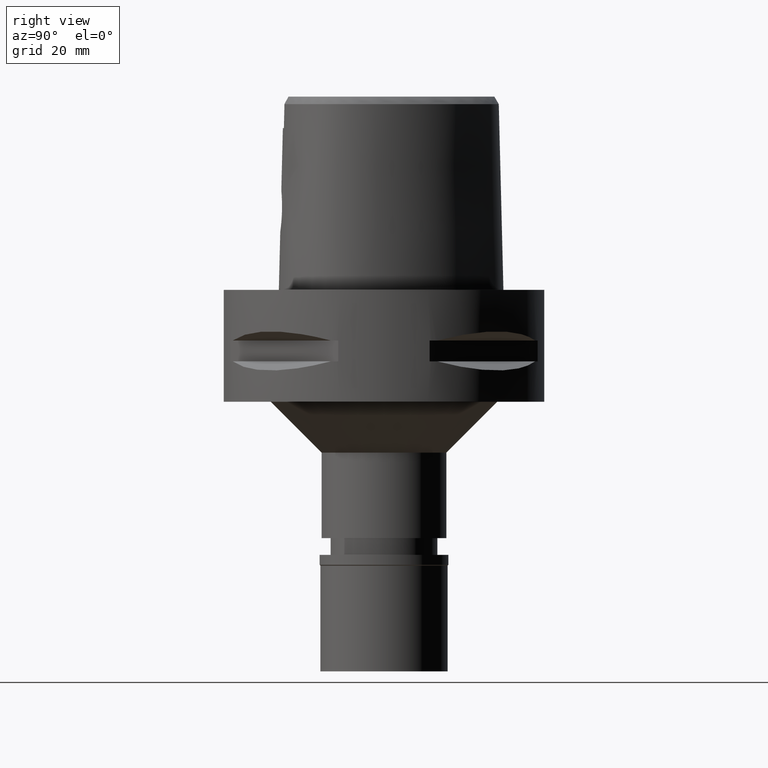
[diagram: clean part render]
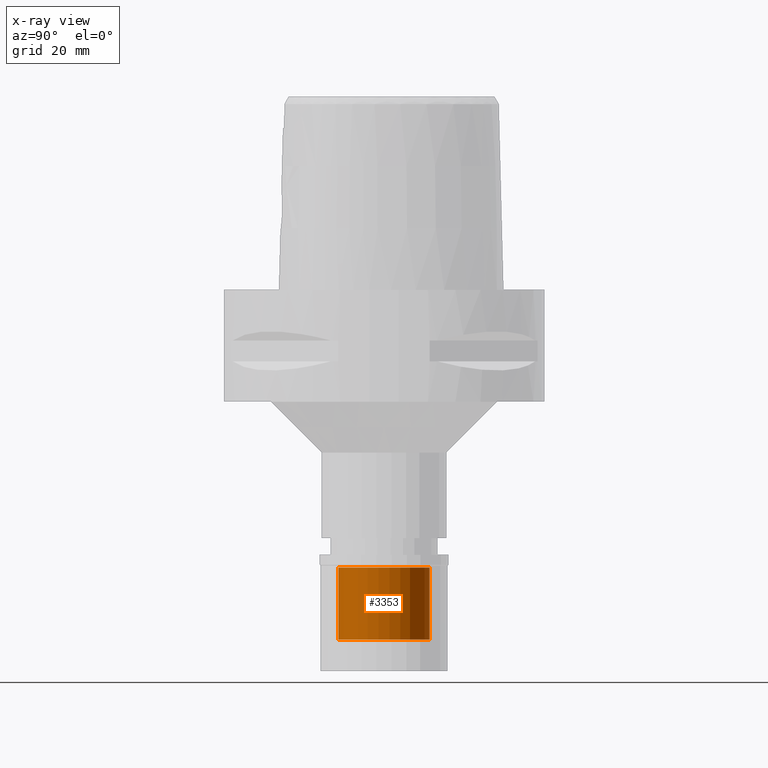
[diagram: x-ray — body ghosted, one internal face saturated and labeled with its STEP entity id]
A machine part, right view, then the same camera in x-ray: the body is ghosted and one INTERNAL B-rep face — a face not visible from any outside direction — is saturated and labeled: STEP entity #3353.
In plain terms, the highlighted cylindrical surface (partial cylindrical patch) has radius 9 mm, axis along (0, 0, -1).
Its self-contained STEP definition (entity closure, byte-faithful):
#12 = VECTOR ( 'NONE', #4309, 1000.000000000000000 ) ;
#117 = CARTESIAN_POINT ( 'NONE',  ( 0.0000000000000000000, 0.0000000000000000000, -2.500000000000000000 ) ) ;
#408 = LINE ( 'NONE', #4475, #1955 ) ;
#655 = ORIENTED_EDGE ( 'NONE', *, *, #3859, .T. ) ;
#704 = AXIS2_PLACEMENT_3D ( 'NONE', #746, #771, #3706 ) ;
#746 = CARTESIAN_POINT ( 'NONE',  ( 0.0000000000000000000, 0.0000000000000000000, 0.0000000000000000000 ) ) ;
#771 = DIRECTION ( 'NONE',  ( 0.0000000000000000000, 0.0000000000000000000, -1.000000000000000000 ) ) ;
#785 = ORIENTED_EDGE ( 'NONE', *, *, #2013, .T. ) ;
#791 = CARTESIAN_POINT ( 'NONE',  ( 0.0000000000000000000, 9.000000000000000000, -16.69999999999999929 ) ) ;
#1167 = CIRCLE ( 'NONE', #2736, 9.000000000000000000 ) ;
#1288 = ORIENTED_EDGE ( 'NONE', *, *, #1687, .F. ) ;
#1307 = CARTESIAN_POINT ( 'NONE',  ( 0.0000000000000000000, 0.0000000000000000000, -16.69999999999999929 ) ) ;
#1333 = DIRECTION ( 'NONE',  ( 0.0000000000000000000, 0.0000000000000000000, -1.000000000000000000 ) ) ;
#1379 = CARTESIAN_POINT ( 'NONE',  ( 0.0000000000000000000, 9.000000000000000000, -2.500000000000000000 ) ) ;
#1456 = CYLINDRICAL_SURFACE ( 'NONE', #704, 9.000000000000000000 ) ;
#1462 = DIRECTION ( 'NONE',  ( 0.0000000000000000000, 0.0000000000000000000, 1.000000000000000000 ) ) ;
#1551 = CARTESIAN_POINT ( 'NONE',  ( 0.0000000000000000000, -9.000000000000000000, -16.69999999999999929 ) ) ;
#1613 = DIRECTION ( 'NONE',  ( 0.0000000000000000000, 0.0000000000000000000, 1.000000000000000000 ) ) ;
#1687 = EDGE_CURVE ( 'NONE', #4313, #3944, #408, .T. ) ;
#1955 = VECTOR ( 'NONE', #1462, 1000.000000000000000 ) ;
#2013 = EDGE_CURVE ( 'NONE', #2159, #3944, #1167, .T. ) ;
#2128 = AXIS2_PLACEMENT_3D ( 'NONE', #1307, #1333, #2447 ) ;
#2159 = VERTEX_POINT ( 'NONE', #4817 ) ;
#2447 = DIRECTION ( 'NONE',  ( 0.0000000000000000000, 1.000000000000000000, 0.0000000000000000000 ) ) ;
#2736 = AXIS2_PLACEMENT_3D ( 'NONE', #117, #1613, #3099 ) ;
#3099 = DIRECTION ( 'NONE',  ( 0.0000000000000000000, -1.000000000000000000, 0.0000000000000000000 ) ) ;
#3224 = LINE ( 'NONE', #4352, #12 ) ;
#3353 = ADVANCED_FACE ( 'NONE', ( #4294 ), #1456, .F. ) ;
#3534 = ORIENTED_EDGE ( 'NONE', *, *, #4577, .T. ) ;
#3685 = EDGE_LOOP ( 'NONE', ( #655, #3534, #785, #1288 ) ) ;
#3706 = DIRECTION ( 'NONE',  ( 0.0000000000000000000, -1.000000000000000000, 0.0000000000000000000 ) ) ;
#3859 = EDGE_CURVE ( 'NONE', #4313, #4269, #3989, .T. ) ;
#3944 = VERTEX_POINT ( 'NONE', #1379 ) ;
#3989 = CIRCLE ( 'NONE', #2128, 9.000000000000000000 ) ;
#4269 = VERTEX_POINT ( 'NONE', #1551 ) ;
#4294 = FACE_OUTER_BOUND ( 'NONE', #3685, .T. ) ;
#4309 = DIRECTION ( 'NONE',  ( 0.0000000000000000000, 0.0000000000000000000, 1.000000000000000000 ) ) ;
#4313 = VERTEX_POINT ( 'NONE', #791 ) ;
#4352 = CARTESIAN_POINT ( 'NONE',  ( 0.0000000000000000000, -9.000000000000000000, -16.69999999999999929 ) ) ;
#4475 = CARTESIAN_POINT ( 'NONE',  ( 0.0000000000000000000, 9.000000000000000000, -16.69999999999999929 ) ) ;
#4577 = EDGE_CURVE ( 'NONE', #4269, #2159, #3224, .T. ) ;
#4817 = CARTESIAN_POINT ( 'NONE',  ( 0.0000000000000000000, -9.000000000000000000, -2.500000000000000000 ) ) ;